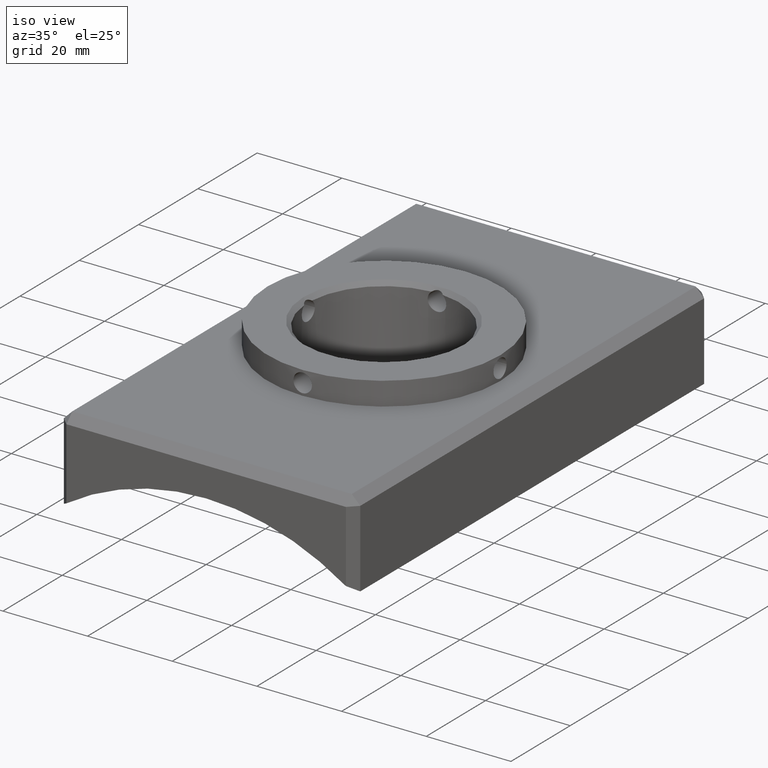
[diagram: clean part render]
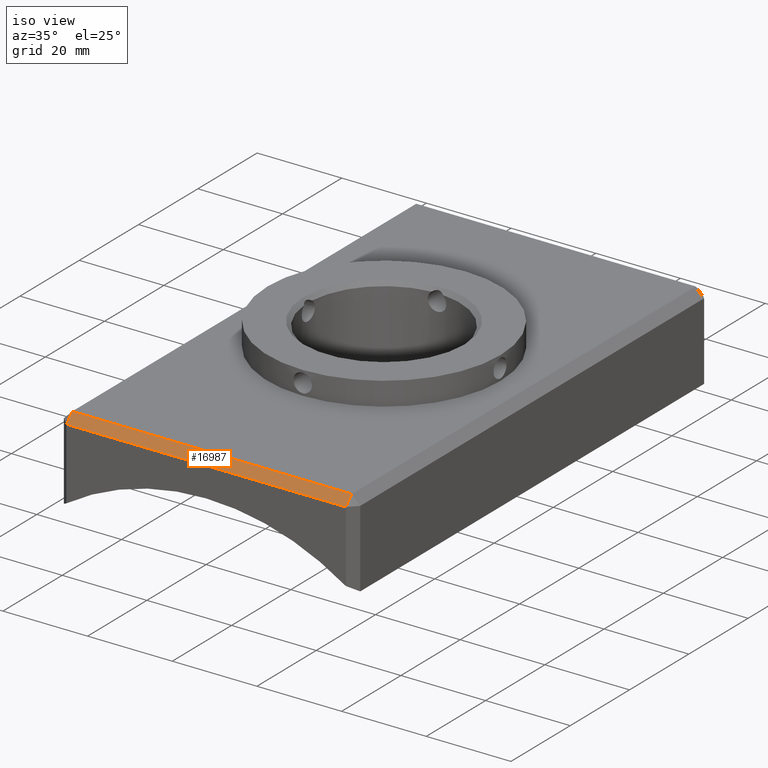
[diagram: same view with one face highlighted and labeled with its STEP entity id]
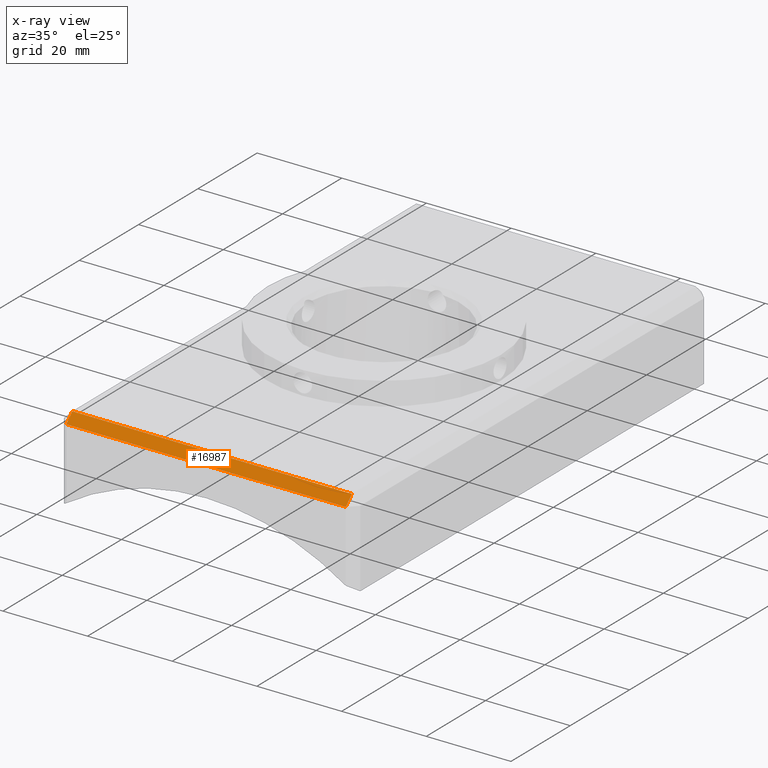
[diagram: x-ray of the same camera — body ghosted, the highlighted face saturated]
A machine part, iso view. The second image highlights one B-rep face of the part: STEP entity #16987.
The next image is the same camera in x-ray: the body ghosted, the highlighted face saturated — about 0% of this face is hidden behind the body in this view.
In plain terms, the highlighted planar face has unit normal (-0, -0.7071, 0.7071).
Its self-contained STEP definition (entity closure, byte-faithful):
#749 = CARTESIAN_POINT ( 'NONE',  ( 34.99999999999999289, -58.00000000000000000, 7.499999999999986677 ) ) ;
#1140 = LINE ( 'NONE', #12613, #15013 ) ;
#2167 = CARTESIAN_POINT ( 'NONE',  ( 32.99999999999997158, -58.00000000000000000, 7.499999999999986677 ) ) ;
#2348 = VERTEX_POINT ( 'NONE', #14228 ) ;
#2379 = EDGE_CURVE ( 'NONE', #18197, #4617, #9006, .T. ) ;
#2842 = AXIS2_PLACEMENT_3D ( 'NONE', #11908, #17685, #3327 ) ;
#3327 = DIRECTION ( 'NONE',  ( 1.000000000000000000, -3.965082230804130713E-16, -1.094764425253763337E-47 ) ) ;
#3531 = DIRECTION ( 'NONE',  ( 1.000000000000000000, -3.965082230804130713E-16, -1.094764425253763337E-47 ) ) ;
#4617 = VERTEX_POINT ( 'NONE', #15998 ) ;
#4815 = FACE_OUTER_BOUND ( 'NONE', #15964, .T. ) ;
#5514 = LINE ( 'NONE', #749, #7074 ) ;
#6473 = ORIENTED_EDGE ( 'NONE', *, *, #13186, .F. ) ;
#7074 = VECTOR ( 'NONE', #3531, 1000.000000000000000 ) ;
#8003 = LINE ( 'NONE', #12768, #17441 ) ;
#8209 = DIRECTION ( 'NONE',  ( 2.664392185321332523E-15, -0.7071067811865487940, -0.7071067811865463515 ) ) ;
#8685 = DIRECTION ( 'NONE',  ( -2.200518442539841365E-16, -0.7071067811865486830, -0.7071067811865464625 ) ) ;
#8829 = CARTESIAN_POINT ( 'NONE',  ( -32.99999999999999289, -57.99999999999997868, 7.499999999999986677 ) ) ;
#8952 = PLANE ( 'NONE',  #2842 ) ;
#9006 = LINE ( 'NONE', #14413, #18222 ) ;
#9742 = DIRECTION ( 'NONE',  ( -1.000000000000000000, 3.965082230804130713E-16, 1.094764425253763337E-47 ) ) ;
#9745 = EDGE_CURVE ( 'NONE', #12468, #2348, #1140, .T. ) ;
#10651 = ORIENTED_EDGE ( 'NONE', *, *, #9745, .F. ) ;
#11438 = ORIENTED_EDGE ( 'NONE', *, *, #2379, .T. ) ;
#11908 = CARTESIAN_POINT ( 'NONE',  ( -35.00000000000000711, -59.99999999999999289, 5.499999999999976907 ) ) ;
#12360 = ORIENTED_EDGE ( 'NONE', *, *, #15768, .F. ) ;
#12468 = VERTEX_POINT ( 'NONE', #2167 ) ;
#12613 = CARTESIAN_POINT ( 'NONE',  ( 32.99999999999997868, -60.00000000000002132, 5.499999999999976907 ) ) ;
#12768 = CARTESIAN_POINT ( 'NONE',  ( -35.00000000000000711, -59.99999999999999289, 5.499999999999977796 ) ) ;
#13186 = EDGE_CURVE ( 'NONE', #2348, #4617, #8003, .T. ) ;
#14228 = CARTESIAN_POINT ( 'NONE',  ( 32.99999999999997868, -60.00000000000002132, 5.499999999999977796 ) ) ;
#14413 = CARTESIAN_POINT ( 'NONE',  ( -32.99999999999999289, -59.99999999999999289, 5.499999999999977796 ) ) ;
#15013 = VECTOR ( 'NONE', #8209, 999.9999999999998863 ) ;
#15768 = EDGE_CURVE ( 'NONE', #18197, #12468, #5514, .T. ) ;
#15964 = EDGE_LOOP ( 'NONE', ( #11438, #6473, #10651, #12360 ) ) ;
#15998 = CARTESIAN_POINT ( 'NONE',  ( -32.99999999999999289, -59.99999999999999289, 5.499999999999977796 ) ) ;
#16987 = ADVANCED_FACE ( 'NONE', ( #4815 ), #8952, .T. ) ;
#17441 = VECTOR ( 'NONE', #9742, 1000.000000000000000 ) ;
#17685 = DIRECTION ( 'NONE',  ( -2.803736533363879912E-16, -0.7071067811865464625, 0.7071067811865486830 ) ) ;
#18197 = VERTEX_POINT ( 'NONE', #8829 ) ;
#18222 = VECTOR ( 'NONE', #8685, 999.9999999999998863 ) ;